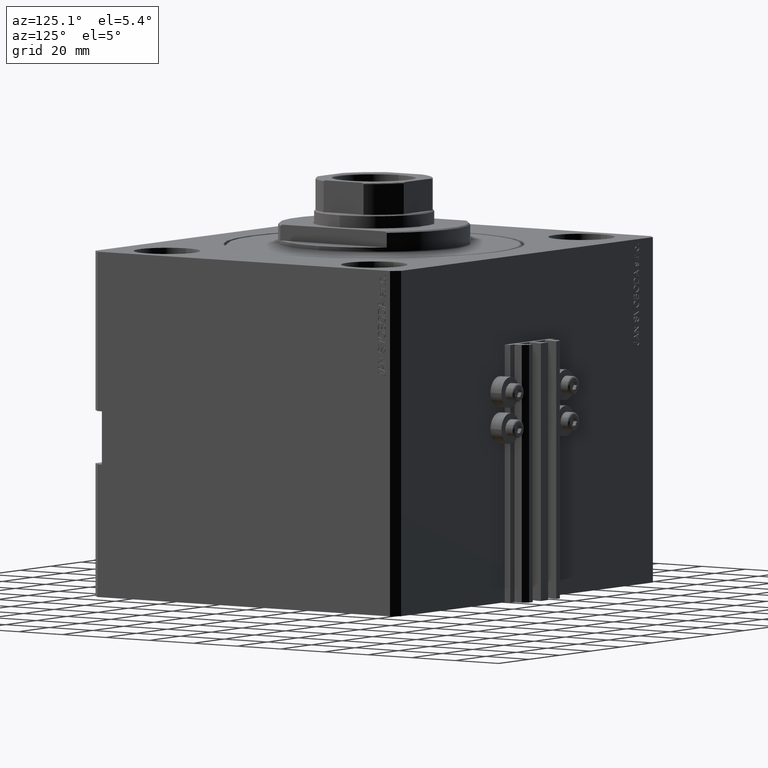
[diagram: clean part render]
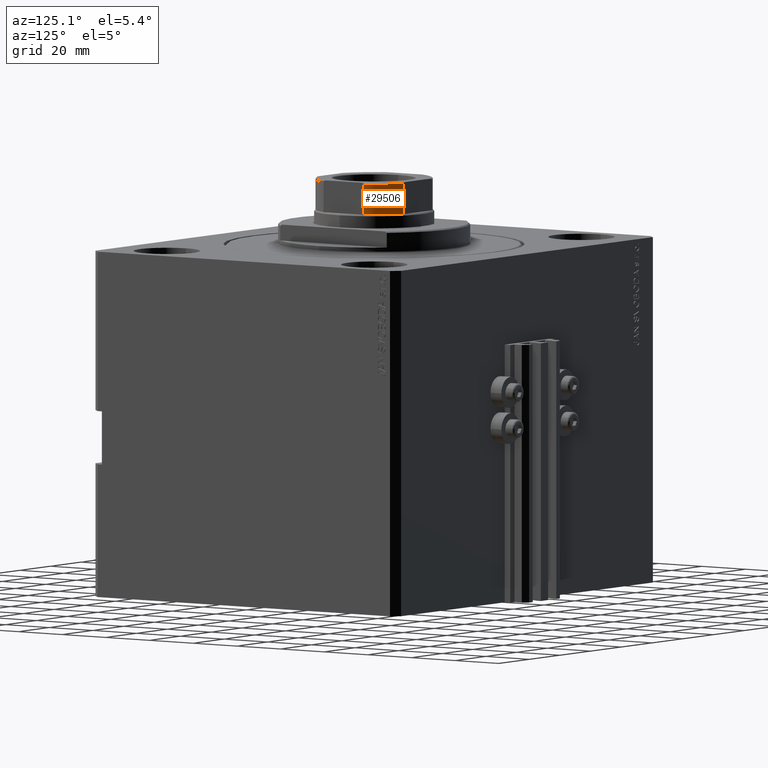
[diagram: same view with one face highlighted and labeled with its STEP entity id]
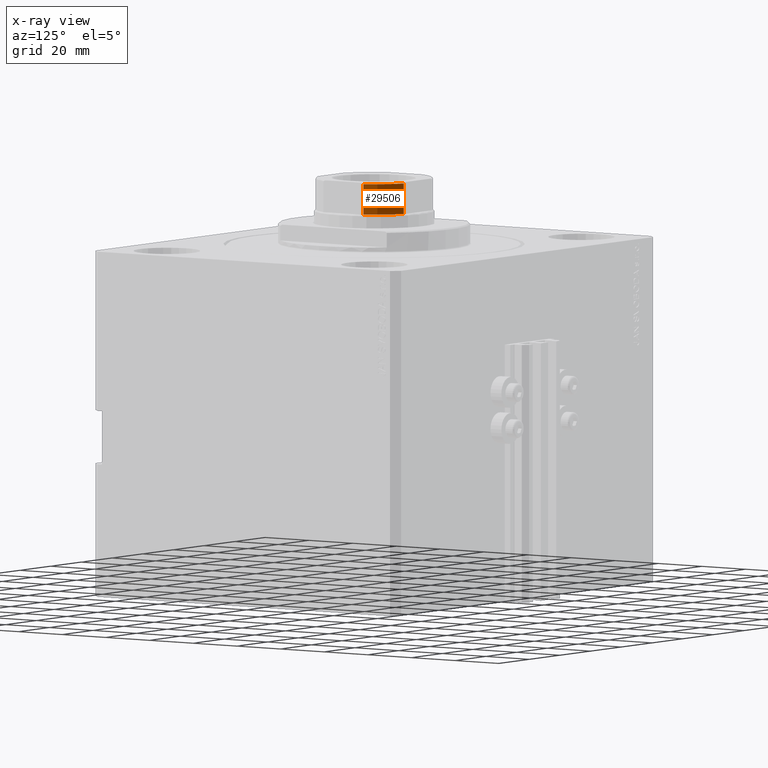
[diagram: x-ray of the same camera — body ghosted, the highlighted face saturated]
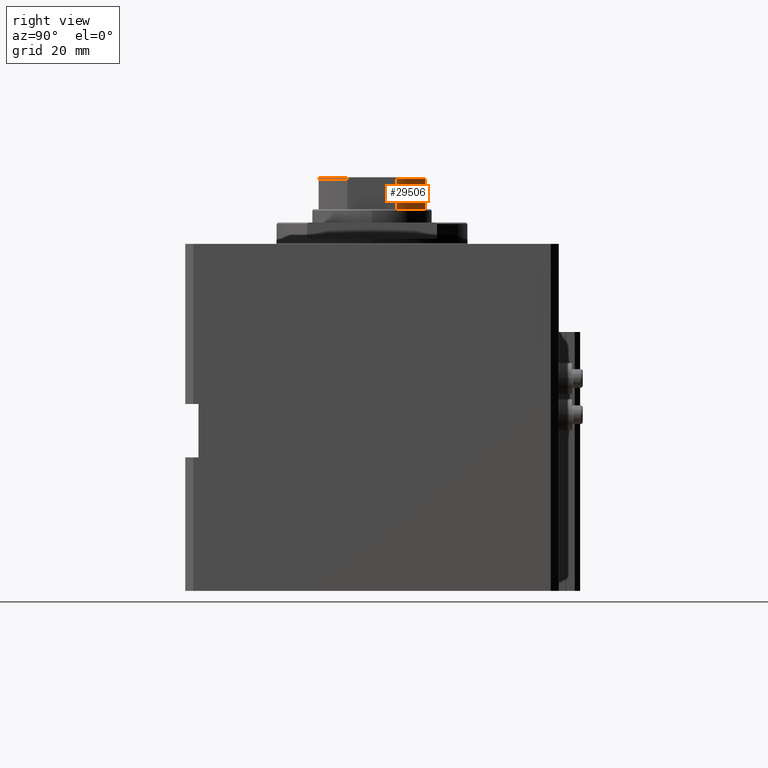
[diagram: same view with one face highlighted and labeled with its STEP entity id]
A machine part, auxiliary view. The second image highlights one B-rep face of the part: STEP entity #29506.
The next image is the same camera in x-ray: the body ghosted, the highlighted face saturated — about 0% of this face is hidden behind the body in this view.
A second angle (right view) of the same face is appended — the face is thin or edge-on in the first view.
In plain terms, the highlighted cylindrical surface (partial cylindrical patch) has radius 22 mm, axis along (0, 0, 1).
Its self-contained STEP definition (entity closure, byte-faithful):
#4785 = EDGE_CURVE ( 'NONE', #20533, #21445, #36522, .T. ) ;
#4939 = CARTESIAN_POINT ( 'NONE',  ( 19.99999999999999645, 9.165151389911683211, 114.1000000000001364 ) ) ;
#5255 = AXIS2_PLACEMENT_3D ( 'NONE', #12910, #27604, #27844 ) ;
#5464 = EDGE_CURVE ( 'NONE', #20533, #19838, #45890, .T. ) ;
#7239 = EDGE_CURVE ( 'NONE', #19838, #44306, #44402, .T. ) ;
#9060 = DIRECTION ( 'NONE',  ( 1.000000000000000000, 0.000000000000000000, 0.000000000000000000 ) ) ;
#10662 = EDGE_CURVE ( 'NONE', #44306, #21445, #17007, .T. ) ;
#11122 = DIRECTION ( 'NONE',  ( -0.000000000000000000, -0.000000000000000000, 1.000000000000000000 ) ) ;
#11597 = FACE_OUTER_BOUND ( 'NONE', #19220, .T. ) ;
#12910 = CARTESIAN_POINT ( 'NONE',  ( 0.000000000000000000, 0.000000000000000000, 125.6000000000000227 ) ) ;
#14575 = ORIENTED_EDGE ( 'NONE', *, *, #5464, .T. ) ;
#17007 = CIRCLE ( 'NONE', #5255, 22.00000000000000000 ) ;
#18016 = ORIENTED_EDGE ( 'NONE', *, *, #7239, .T. ) ;
#18142 = CARTESIAN_POINT ( 'NONE',  ( 9.165151389911676105, 20.00000000000000000, 125.6000000000000227 ) ) ;
#18648 = DIRECTION ( 'NONE',  ( -0.000000000000000000, -0.000000000000000000, 1.000000000000000000 ) ) ;
#19220 = EDGE_LOOP ( 'NONE', ( #18016, #24020, #32580, #14575 ) ) ;
#19838 = VERTEX_POINT ( 'NONE', #28899 ) ;
#20533 = VERTEX_POINT ( 'NONE', #4939 ) ;
#21445 = VERTEX_POINT ( 'NONE', #23124 ) ;
#23124 = CARTESIAN_POINT ( 'NONE',  ( 19.99999999999999645, 9.165151389911683211, 125.6000000000000227 ) ) ;
#24020 = ORIENTED_EDGE ( 'NONE', *, *, #10662, .T. ) ;
#24487 = CARTESIAN_POINT ( 'NONE',  ( 0.000000000000000000, 0.000000000000000000, 114.1000000000000085 ) ) ;
#27604 = DIRECTION ( 'NONE',  ( 0.000000000000000000, -0.000000000000000000, -1.000000000000000000 ) ) ;
#27844 = DIRECTION ( 'NONE',  ( 1.000000000000000000, 0.000000000000000000, 0.000000000000000000 ) ) ;
#28899 = CARTESIAN_POINT ( 'NONE',  ( 9.165151389911676105, 20.00000000000000000, 114.1000000000001364 ) ) ;
#29506 = ADVANCED_FACE ( 'NONE', ( #11597 ), #48337, .T. ) ;
#29727 = DIRECTION ( 'NONE',  ( 1.000000000000000000, 0.000000000000000000, 0.000000000000000000 ) ) ;
#31596 = DIRECTION ( 'NONE',  ( 0.000000000000000000, 0.000000000000000000, 1.000000000000000000 ) ) ;
#32580 = ORIENTED_EDGE ( 'NONE', *, *, #4785, .F. ) ;
#33370 = CARTESIAN_POINT ( 'NONE',  ( 9.165151389911676105, 20.00000000000000000, -0.001000000000001000089 ) ) ;
#33894 = CARTESIAN_POINT ( 'NONE',  ( 0.000000000000000000, 0.000000000000000000, -0.001000000000001000089 ) ) ;
#34968 = VECTOR ( 'NONE', #41438, 1000.000000000000000 ) ;
#36522 = LINE ( 'NONE', #47082, #45856 ) ;
#37290 = AXIS2_PLACEMENT_3D ( 'NONE', #24487, #31596, #9060 ) ;
#41438 = DIRECTION ( 'NONE',  ( -0.000000000000000000, -0.000000000000000000, 1.000000000000000000 ) ) ;
#41827 = AXIS2_PLACEMENT_3D ( 'NONE', #33894, #11122, #29727 ) ;
#44306 = VERTEX_POINT ( 'NONE', #18142 ) ;
#44402 = LINE ( 'NONE', #33370, #34968 ) ;
#45856 = VECTOR ( 'NONE', #18648, 1000.000000000000000 ) ;
#45890 = CIRCLE ( 'NONE', #37290, 22.00000000000012790 ) ;
#47082 = CARTESIAN_POINT ( 'NONE',  ( 19.99999999999999645, 9.165151389911683211, -0.001000000000001000089 ) ) ;
#48337 = CYLINDRICAL_SURFACE ( 'NONE', #41827, 22.00000000000000000 ) ;